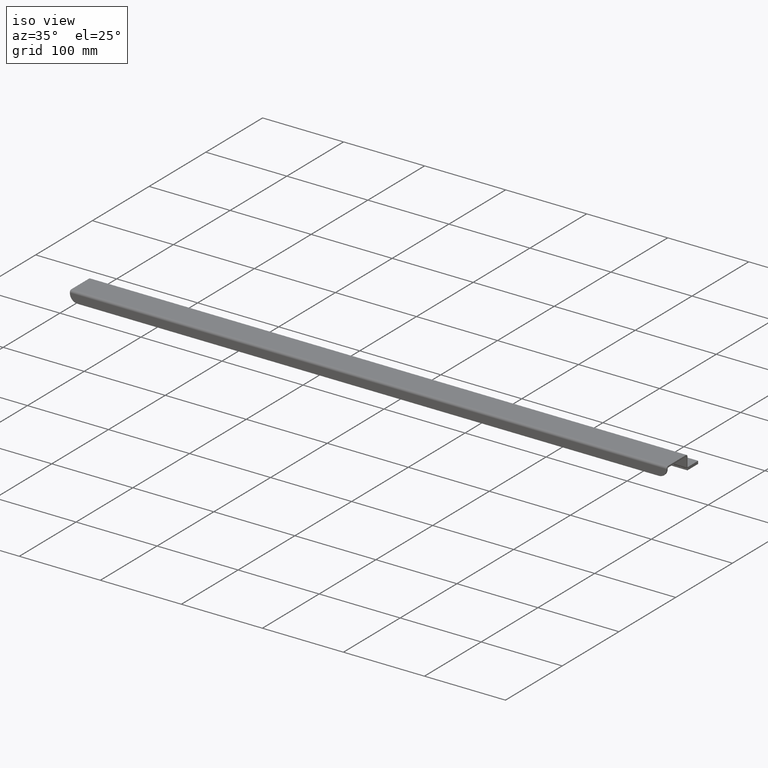
[diagram: clean part render]
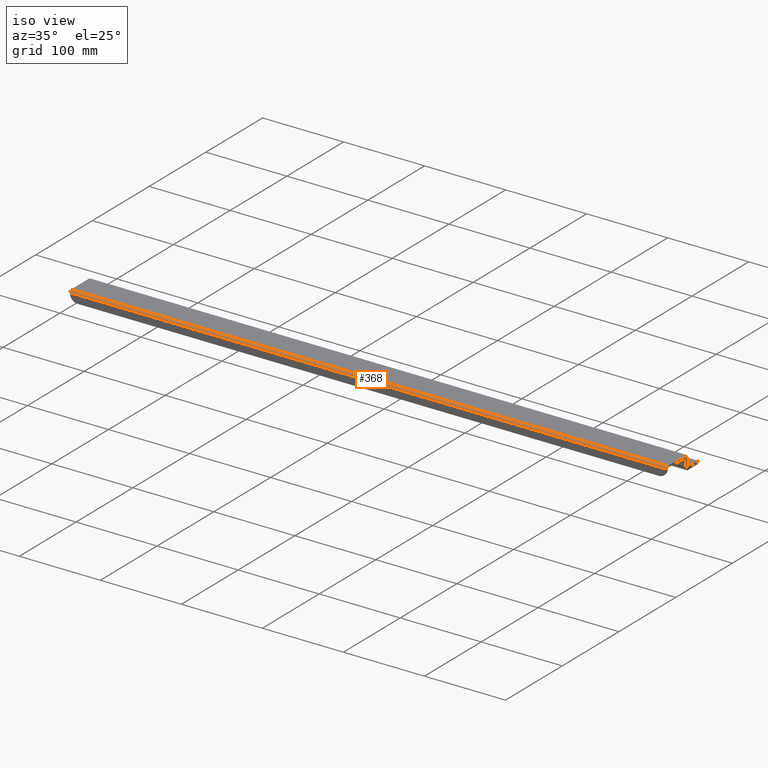
[diagram: same view with one face highlighted and labeled with its STEP entity id]
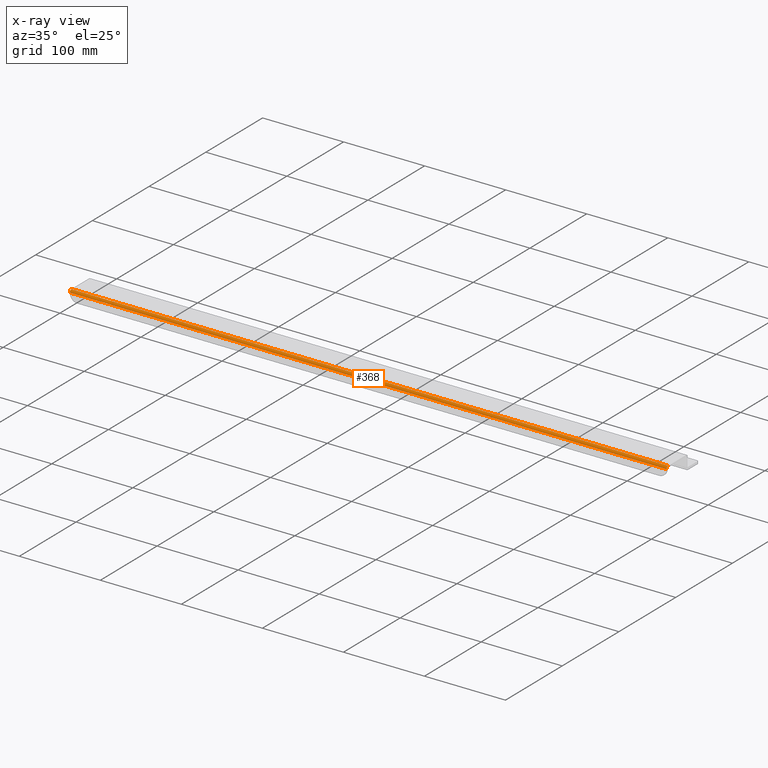
[diagram: x-ray of the same camera — body ghosted, the highlighted face saturated]
A machine part, iso view. The second image highlights one B-rep face of the part: STEP entity #368.
The next image is the same camera in x-ray: the body ghosted, the highlighted face saturated — about 0% of this face is hidden behind the body in this view.
In plain terms, the highlighted cylindrical surface (edge-blend (fillet) strip) has radius 2.7432 mm, axis along (1, 0, 0).
Its self-contained STEP definition (entity closure, byte-faithful):
#12 = FACE_OUTER_BOUND ( 'NONE', #1037, .T. ) ;
#32 = LINE ( 'NONE', #1435, #890 ) ;
#52 = DIRECTION ( 'NONE',  ( 0.0000000000000000000, 0.0000000000000000000, -1.000000000000000000 ) ) ;
#61 = LINE ( 'NONE', #312, #981 ) ;
#93 = EDGE_CURVE ( 'NONE', #1150, #1249, #2130, .T. ) ;
#144 = EDGE_CURVE ( 'NONE', #397, #2274, #2042, .T. ) ;
#162 = AXIS2_PLACEMENT_3D ( 'NONE', #1134, #1498, #2430 ) ;
#166 = ORIENTED_EDGE ( 'NONE', *, *, #494, .T. ) ;
#261 = CARTESIAN_POINT ( 'NONE',  ( -14.50000000000000178, -0.9860000000000119780, 0.4640000000000000235 ) ) ;
#312 = CARTESIAN_POINT ( 'NONE',  ( -14.50000000000000178, -1.094000000000012074, 0.4640000000000000235 ) ) ;
#368 = ADVANCED_FACE ( 'NONE', ( #12 ), #784, .T. ) ;
#397 = VERTEX_POINT ( 'NONE', #1425 ) ;
#494 = EDGE_CURVE ( 'NONE', #1150, #2274, #32, .T. ) ;
#508 = AXIS2_PLACEMENT_3D ( 'NONE', #261, #1449, #52 ) ;
#583 = EDGE_CURVE ( 'NONE', #397, #1249, #61, .T. ) ;
#767 = DIRECTION ( 'NONE',  ( 0.0000000000000000000, 0.0000000000000000000, -1.000000000000000000 ) ) ;
#784 = CYLINDRICAL_SURFACE ( 'NONE', #508, 0.1079999999999999849 ) ;
#818 = CARTESIAN_POINT ( 'NONE',  ( 14.50000000000000178, -0.9860000000000119780, 0.5720000000000000639 ) ) ;
#890 = VECTOR ( 'NONE', #1291, 39.37007874015748143 ) ;
#963 = CARTESIAN_POINT ( 'NONE',  ( -14.50000000000000178, -0.9860000000000119780, 0.4640000000000000235 ) ) ;
#981 = VECTOR ( 'NONE', #1703, 39.37007874015748143 ) ;
#1035 = ORIENTED_EDGE ( 'NONE', *, *, #93, .F. ) ;
#1037 = EDGE_LOOP ( 'NONE', ( #1979, #1035, #166, #1750 ) ) ;
#1134 = CARTESIAN_POINT ( 'NONE',  ( 14.50000000000000178, -0.9860000000000119780, 0.4640000000000000235 ) ) ;
#1145 = AXIS2_PLACEMENT_3D ( 'NONE', #963, #1183, #767 ) ;
#1150 = VERTEX_POINT ( 'NONE', #818 ) ;
#1183 = DIRECTION ( 'NONE',  ( -1.000000000000000000, -0.0000000000000000000, -0.0000000000000000000 ) ) ;
#1233 = CARTESIAN_POINT ( 'NONE',  ( 14.50000000000000178, -1.094000000000011852, 0.4640000000000000235 ) ) ;
#1249 = VERTEX_POINT ( 'NONE', #1233 ) ;
#1291 = DIRECTION ( 'NONE',  ( -1.000000000000000000, -0.0000000000000000000, -0.0000000000000000000 ) ) ;
#1425 = CARTESIAN_POINT ( 'NONE',  ( -14.50000000000000178, -1.094000000000011852, 0.4640000000000000235 ) ) ;
#1435 = CARTESIAN_POINT ( 'NONE',  ( -14.50000000000000178, -0.9860000000000119780, 0.5719999999999999529 ) ) ;
#1449 = DIRECTION ( 'NONE',  ( 1.000000000000000000, 0.0000000000000000000, 0.0000000000000000000 ) ) ;
#1498 = DIRECTION ( 'NONE',  ( 1.000000000000000000, 0.0000000000000000000, 0.0000000000000000000 ) ) ;
#1631 = CARTESIAN_POINT ( 'NONE',  ( -14.50000000000000178, -0.9860000000000120890, 0.5720000000000000639 ) ) ;
#1703 = DIRECTION ( 'NONE',  ( 1.000000000000000000, 0.0000000000000000000, 0.0000000000000000000 ) ) ;
#1750 = ORIENTED_EDGE ( 'NONE', *, *, #144, .F. ) ;
#1979 = ORIENTED_EDGE ( 'NONE', *, *, #583, .T. ) ;
#2042 = CIRCLE ( 'NONE', #1145, 0.1079999999999999849 ) ;
#2130 = CIRCLE ( 'NONE', #162, 0.1079999999999999849 ) ;
#2274 = VERTEX_POINT ( 'NONE', #1631 ) ;
#2430 = DIRECTION ( 'NONE',  ( 0.0000000000000000000, 0.0000000000000000000, -1.000000000000000000 ) ) ;